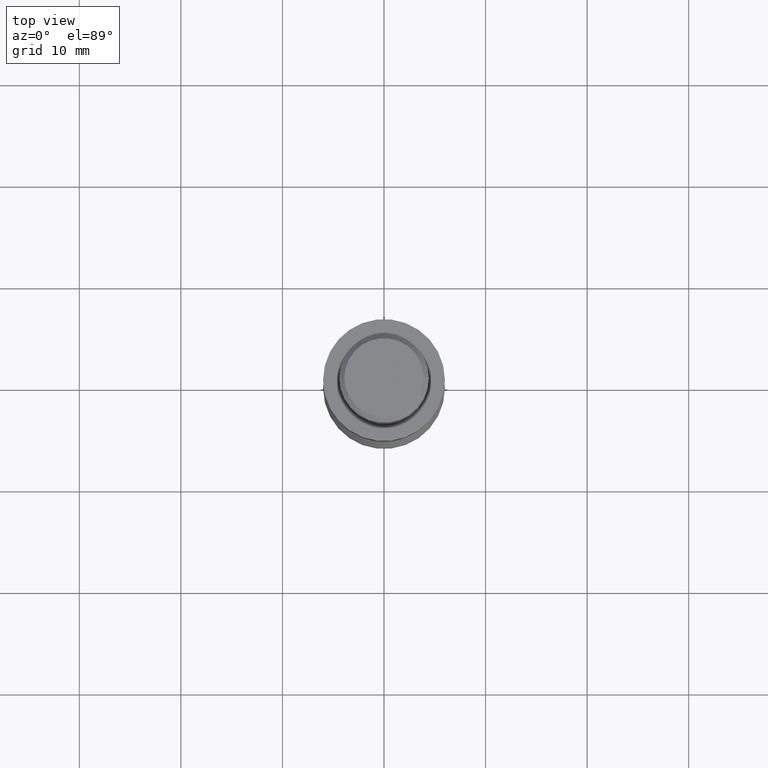
[diagram: clean part render]
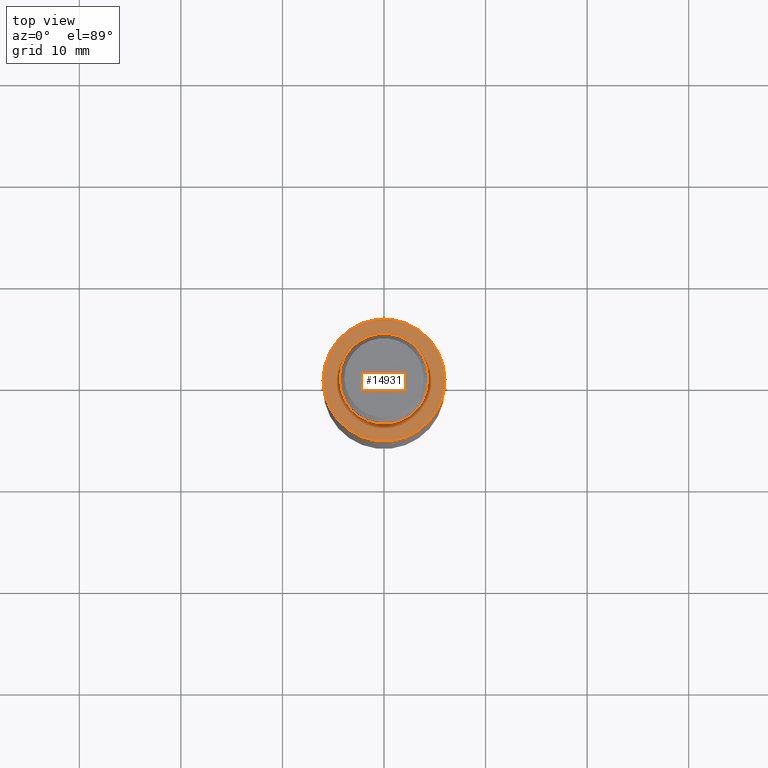
[diagram: same view with one face highlighted and labeled with its STEP entity id]
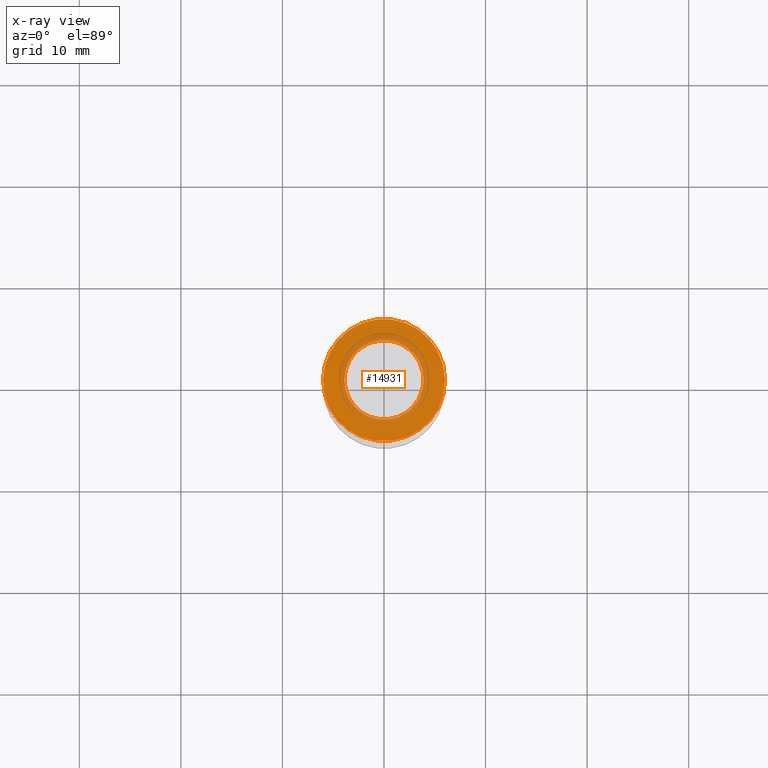
[diagram: x-ray of the same camera — body ghosted, the highlighted face saturated]
A machine part, top view. The second image highlights one B-rep face of the part: STEP entity #14931.
The next image is the same camera in x-ray: the body ghosted, the highlighted face saturated — about 21% of this face is hidden behind the body in this view.
In plain terms, the highlighted planar face has unit normal (0, 0, 1).
Its self-contained STEP definition (entity closure, byte-faithful):
#653 = DIRECTION ( 'NONE',  ( -0.000000000000000000, -0.000000000000000000, -1.000000000000000000 ) ) ;
#777 = CARTESIAN_POINT ( 'NONE',  ( 5.999999999999998224, -4.900242124696364024E-15, 22.50000000000000000 ) ) ;
#934 = CARTESIAN_POINT ( 'NONE',  ( -3.899999999999999023, -5.635030204184775702E-15, 22.50000000000000000 ) ) ;
#1141 = ORIENTED_EDGE ( 'NONE', *, *, #11374, .F. ) ;
#2045 = CARTESIAN_POINT ( 'NONE',  ( 0.000000000000000000, -5.635030204184775702E-15, 22.50000000000000000 ) ) ;
#2066 = AXIS2_PLACEMENT_3D ( 'NONE', #13047, #2393, #10843 ) ;
#2257 = VERTEX_POINT ( 'NONE', #934 ) ;
#2393 = DIRECTION ( 'NONE',  ( -0.000000000000000000, -0.000000000000000000, -1.000000000000000000 ) ) ;
#2972 = AXIS2_PLACEMENT_3D ( 'NONE', #15331, #14241, #8058 ) ;
#2982 = VERTEX_POINT ( 'NONE', #6978 ) ;
#4336 = PLANE ( 'NONE',  #4794 ) ;
#4472 = EDGE_CURVE ( 'NONE', #2982, #2257, #9795, .T. ) ;
#4508 = AXIS2_PLACEMENT_3D ( 'NONE', #9155, #653, #9102 ) ;
#4550 = CIRCLE ( 'NONE', #5743, 3.899999999999999023 ) ;
#4794 = AXIS2_PLACEMENT_3D ( 'NONE', #12785, #5521, #6792 ) ;
#5331 = CARTESIAN_POINT ( 'NONE',  ( -5.999999999999997335, -5.635030204184775702E-15, 22.50000000000000000 ) ) ;
#5363 = FACE_BOUND ( 'NONE', #7445, .T. ) ;
#5521 = DIRECTION ( 'NONE',  ( 0.000000000000000000, 0.000000000000000000, 1.000000000000000000 ) ) ;
#5544 = DIRECTION ( 'NONE',  ( -0.000000000000000000, -0.000000000000000000, -1.000000000000000000 ) ) ;
#5681 = VERTEX_POINT ( 'NONE', #777 ) ;
#5743 = AXIS2_PLACEMENT_3D ( 'NONE', #2045, #5544, #8069 ) ;
#5824 = CIRCLE ( 'NONE', #2972, 5.999999999999997335 ) ;
#6428 = EDGE_CURVE ( 'NONE', #5681, #12333, #14527, .T. ) ;
#6792 = DIRECTION ( 'NONE',  ( 1.000000000000000000, 0.000000000000000000, -0.000000000000000000 ) ) ;
#6978 = CARTESIAN_POINT ( 'NONE',  ( 3.899999999999999023, -5.157417952517308466E-15, 22.50000000000000000 ) ) ;
#7445 = EDGE_LOOP ( 'NONE', ( #8689, #12454 ) ) ;
#8058 = DIRECTION ( 'NONE',  ( -1.000000000000000000, 0.000000000000000000, 0.000000000000000000 ) ) ;
#8069 = DIRECTION ( 'NONE',  ( -1.000000000000000000, 0.000000000000000000, 0.000000000000000000 ) ) ;
#8689 = ORIENTED_EDGE ( 'NONE', *, *, #9489, .T. ) ;
#9102 = DIRECTION ( 'NONE',  ( -1.000000000000000000, 0.000000000000000000, 0.000000000000000000 ) ) ;
#9155 = CARTESIAN_POINT ( 'NONE',  ( 0.000000000000000000, -5.635030204184775702E-15, 22.50000000000000000 ) ) ;
#9489 = EDGE_CURVE ( 'NONE', #2257, #2982, #4550, .T. ) ;
#9795 = CIRCLE ( 'NONE', #4508, 3.899999999999999023 ) ;
#10679 = ORIENTED_EDGE ( 'NONE', *, *, #6428, .F. ) ;
#10843 = DIRECTION ( 'NONE',  ( -1.000000000000000000, 0.000000000000000000, 0.000000000000000000 ) ) ;
#11374 = EDGE_CURVE ( 'NONE', #12333, #5681, #5824, .T. ) ;
#12333 = VERTEX_POINT ( 'NONE', #5331 ) ;
#12454 = ORIENTED_EDGE ( 'NONE', *, *, #4472, .T. ) ;
#12785 = CARTESIAN_POINT ( 'NONE',  ( 0.000000000000000000, 3.899999999999993250, 22.50000000000000000 ) ) ;
#13047 = CARTESIAN_POINT ( 'NONE',  ( 0.000000000000000000, -5.635030204184775702E-15, 22.50000000000000000 ) ) ;
#13136 = EDGE_LOOP ( 'NONE', ( #1141, #10679 ) ) ;
#13776 = FACE_OUTER_BOUND ( 'NONE', #13136, .T. ) ;
#14241 = DIRECTION ( 'NONE',  ( -0.000000000000000000, -0.000000000000000000, -1.000000000000000000 ) ) ;
#14527 = CIRCLE ( 'NONE', #2066, 5.999999999999997335 ) ;
#14931 = ADVANCED_FACE ( 'NONE', ( #5363, #13776 ), #4336, .T. ) ;
#15331 = CARTESIAN_POINT ( 'NONE',  ( 0.000000000000000000, -5.635030204184775702E-15, 22.50000000000000000 ) ) ;